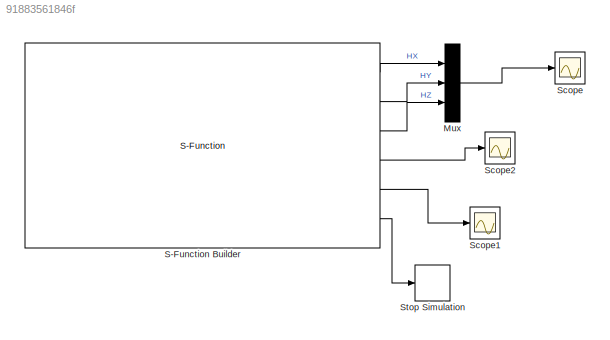
MODEL slx_91883561846f
KIND model
BLOCK [Mux] Mux
  DisplayOption = bar
  Inputs = 3
  Ports = [3, 1]
BLOCK [S-Function] S-Function Builder
  CopyFcn = set_param(gcbh,'LinkStatus','none')
  EnableBusSupport = off
  FunctionName = BBB_Driver_Compass_HMC5883L
  InitFcn = try, set_param(gcb,'FunctionName','BBB_Driver_Compass_HMC5883L'), end
  OpenFcn = sfunctionwizard(gcbh)
  Parameters = uint8(1),uint8(1),uint8(1),uint8(7),uint8(1),uint8(4),uint8(1),uint8(1),0.0,-14.66,boolean(1),uint8(6),uint8(7)
  Ports = [0, 6]
  PreSaveFcn = try, set_param(gcb,'FunctionName','BBB_Driver_Compass_HMC5883L'), end
  SFunctionModules = BBB_Driver_Compass_HMC5883L_wrapper
BLOCK [Scope] Scope
  DataFormat = StructureWithTime
  Floating = off
  LegendLocations = 0.89071      0.9013    0.077331    0.057407
  NumInputPorts = 1
  Ports = [1]
  SampleInput = on
  SampleTime = 0
  ShowLegends = on
  YMax = 55
  YMin = -35
BLOCK [Scope] Scope1
  DataFormat = StructureWithTime
  Floating = off
  NumInputPorts = 1
  Ports = [1]
  SampleTime = 0
  SaveName = ScopeData1
  ShowLegends = off
  YMax = 375
  YMin = 0
BLOCK [Scope] Scope2
  DataFormat = StructureWithTime
  Floating = off
  NumInputPorts = 1
  Ports = [1]
  SampleTime = 0
  SaveName = ScopeData2
  ShowLegends = off
  YMax = 48.5
  YMin = 40
BLOCK [Stop] Stop Simulation
LINE Mux:1 -> Scope:1
LINE S-Function Builder:1 -> Mux:1
LINE S-Function Builder:2 -> Mux:2
LINE S-Function Builder:3 -> Mux:3
LINE S-Function Builder:4 -> Scope2:1
LINE S-Function Builder:5 -> Scope1:1
LINE S-Function Builder:6 -> Stop Simulation:1
